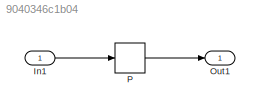
MODEL slx_9040346c1b04
KIND model
CONFIG AbsTol = auto
CONFIG EnableMultiTasking = off
CONFIG FixedStep = auto
CONFIG MaxStep = auto
CONFIG MinStep = auto
CONFIG RelTol = 1e-3
CONFIG SampleTimeConstraint = Unconstrained
CONFIG Solver = FixedStepDiscrete
CONFIG SolverName = FixedStepDiscrete
CONFIG StartTime = 0.0
CONFIG StopTime = 10.0
BLOCK [Inport] In1
  IconDisplay = Port number
  OutMax = 3
  OutMin = 0
BLOCK [Outport] Out1
  IconDisplay = Port number
BLOCK [Interpolation_n-D] P
  ExtrapMethod = Clip
  InputPortMap = u0
  IntermediateResultsDataTypeStr = single
  InternalRulePriority = Speed
  NumSelectionDims = 1
  NumberOfTableDimensions = 1
  OutDataTypeStr = uint32
  Ports = [1, 1]
  SaturateOnIntegerOverflow = on
  Table = [89.6552899158728;58.4187134244883;12.4133398496122]
  ValidIndexMayReachLast = on
LINE In1:1 -> P:1
LINE P:1 -> Out1:1
